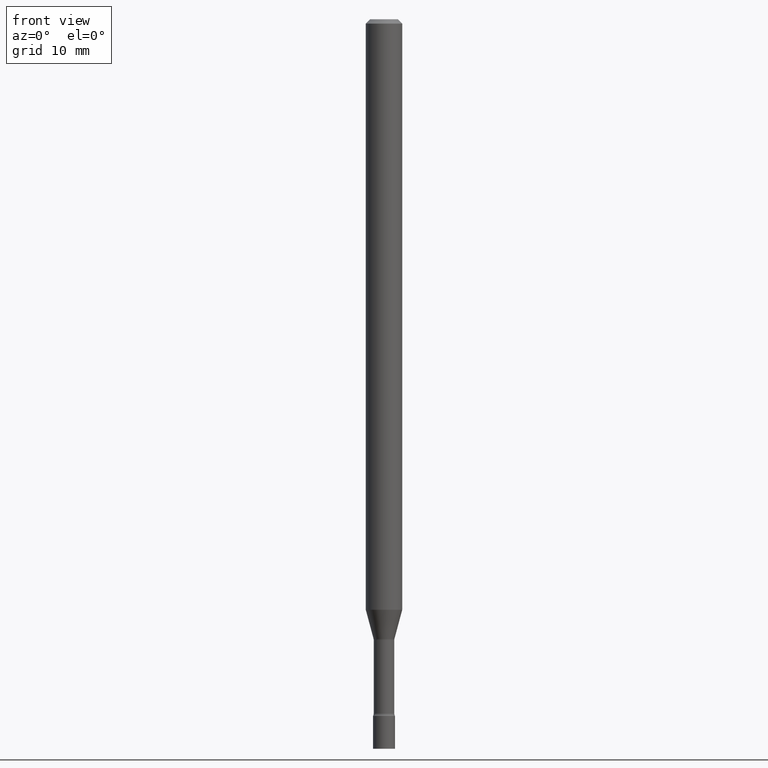
[diagram: clean part render]
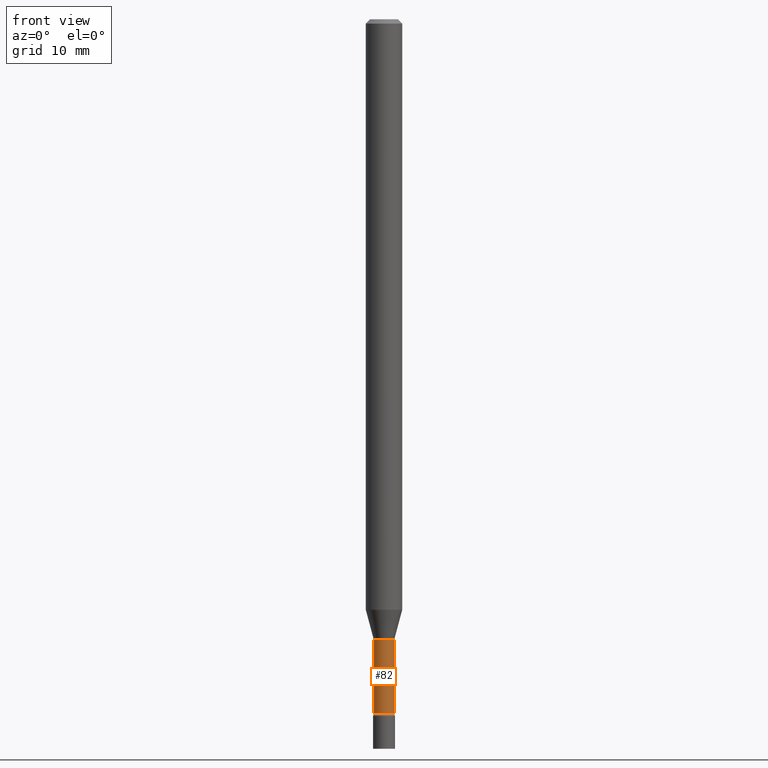
[diagram: same view with one face highlighted and labeled with its STEP entity id]
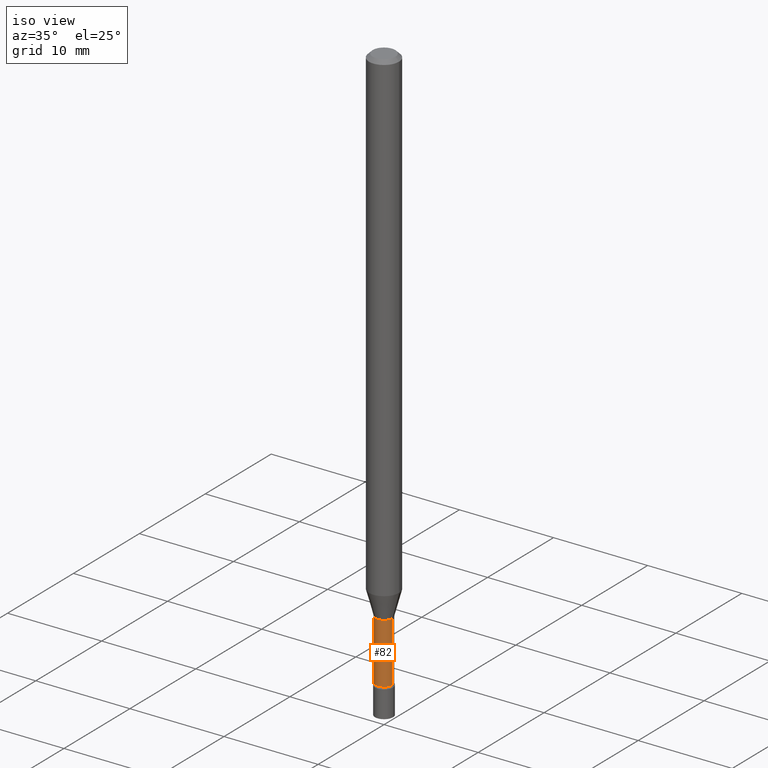
[diagram: same view with one face highlighted and labeled with its STEP entity id]
A machine part, front view. The second image highlights one B-rep face of the part: STEP entity #82.
A second angle (iso view) of the same face is appended — the face is thin or edge-on in the first view.
In plain terms, the highlighted cylindrical surface (edge-blend (fillet) strip) has radius 0.8953 mm, axis along (-0, 0, 1).
Its self-contained STEP definition (entity closure, byte-faithful):
#23 = VERTEX_POINT ( 'NONE', #420 ) ;
#33 = CARTESIAN_POINT ( 'NONE',  ( -0.03524999999999998274, 2.504663143554351929E-16, -1.733924619314853502E-30 ) ) ;
#38 = ORIENTED_EDGE ( 'NONE', *, *, #202, .F. ) ;
#50 = DIRECTION ( 'NONE',  ( -2.445468806185136877E-29, 3.491481338843145188E-15, 1.000000000000000000 ) ) ;
#73 = CIRCLE ( 'NONE', #487, 0.03524999999999999661 ) ;
#79 = EDGE_CURVE ( 'NONE', #387, #147, #311, .T. ) ;
#81 = ORIENTED_EDGE ( 'NONE', *, *, #357, .T. ) ;
#82 = ADVANCED_FACE ( 'NONE', ( #351 ), #514, .T. ) ;
#143 = CARTESIAN_POINT ( 'NONE',  ( 0.03524999999999998274, -2.461494343884408286E-16, 1.718852313468066708E-30 ) ) ;
#147 = VERTEX_POINT ( 'NONE', #245 ) ;
#166 = DIRECTION ( 'NONE',  ( -2.445468806185136877E-29, 3.491481338843145188E-15, 1.000000000000000000 ) ) ;
#173 = DIRECTION ( 'NONE',  ( -2.445468806185136597E-29, 3.491481338843145583E-15, 1.000000000000000000 ) ) ;
#202 = EDGE_CURVE ( 'NONE', #147, #209, #73, .T. ) ;
#204 = CIRCLE ( 'NONE', #444, 0.03524999999999997580 ) ;
#209 = VERTEX_POINT ( 'NONE', #304 ) ;
#245 = CARTESIAN_POINT ( 'NONE',  ( -0.03525000000000000355, -7.615968663437265781E-15, -2.126974787463811190 ) ) ;
#257 = LINE ( 'NONE', #143, #298 ) ;
#260 = ORIENTED_EDGE ( 'NONE', *, *, #79, .F. ) ;
#269 = EDGE_LOOP ( 'NONE', ( #260, #81, #433, #38 ) ) ;
#288 = DIRECTION ( 'NONE',  ( 1.000000000000000000, -6.982962677686275388E-15, 0.000000000000000000 ) ) ;
#289 = DIRECTION ( 'NONE',  ( -2.445468806185136597E-29, 3.491481338843145583E-15, 1.000000000000000000 ) ) ;
#298 = VECTOR ( 'NONE', #50, 39.37007874015748143 ) ;
#304 = CARTESIAN_POINT ( 'NONE',  ( 0.03524999999999999661, -7.672442213008203606E-15, -2.126974787463811190 ) ) ;
#309 = EDGE_CURVE ( 'NONE', #23, #209, #257, .T. ) ;
#311 = LINE ( 'NONE', #33, #452 ) ;
#323 = CARTESIAN_POINT ( 'NONE',  ( -0.03524999999999997580, -8.061911646259376779E-15, -2.379098259685360262 ) ) ;
#324 = DIRECTION ( 'NONE',  ( 1.000000000000000000, -6.982962677686268288E-15, 4.876176775795936353E-29 ) ) ;
#334 = CARTESIAN_POINT ( 'NONE',  ( 5.818010580909893769E-29, -8.306577176965637742E-15, -2.379098259685360262 ) ) ;
#342 = CARTESIAN_POINT ( 'NONE',  ( 5.201450494285011202E-29, -7.426292778619762925E-15, -2.126974787463811190 ) ) ;
#347 = DIRECTION ( 'NONE',  ( 1.000000000000000000, -6.982962677686270655E-15, 0.000000000000000000 ) ) ;
#351 = FACE_OUTER_BOUND ( 'NONE', #269, .T. ) ;
#357 = EDGE_CURVE ( 'NONE', #387, #23, #204, .T. ) ;
#387 = VERTEX_POINT ( 'NONE', #323 ) ;
#395 = DIRECTION ( 'NONE',  ( -2.445468806185136597E-29, 3.491481338843145583E-15, 1.000000000000000000 ) ) ;
#420 = CARTESIAN_POINT ( 'NONE',  ( 0.03524999999999997580, -8.552726611354078422E-15, -2.379098259685360262 ) ) ;
#433 = ORIENTED_EDGE ( 'NONE', *, *, #309, .T. ) ;
#439 = CARTESIAN_POINT ( 'NONE',  ( 0.000000000000000000, 0.000000000000000000, 0.000000000000000000 ) ) ;
#444 = AXIS2_PLACEMENT_3D ( 'NONE', #334, #289, #288 ) ;
#452 = VECTOR ( 'NONE', #166, 39.37007874015748143 ) ;
#459 = AXIS2_PLACEMENT_3D ( 'NONE', #439, #173, #324 ) ;
#487 = AXIS2_PLACEMENT_3D ( 'NONE', #342, #395, #347 ) ;
#514 = CYLINDRICAL_SURFACE ( 'NONE', #459, 0.03524999999999998274 ) ;